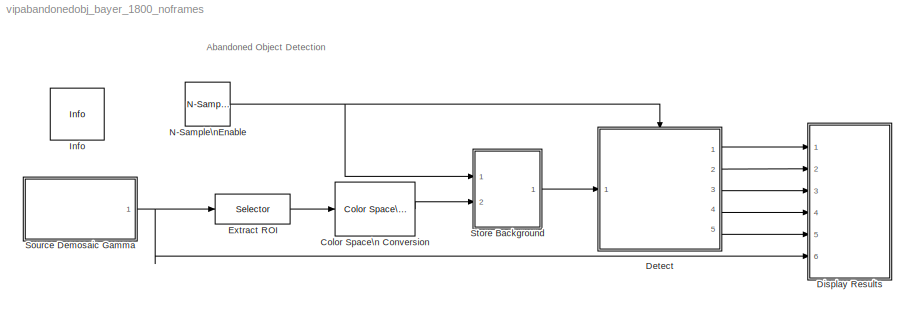
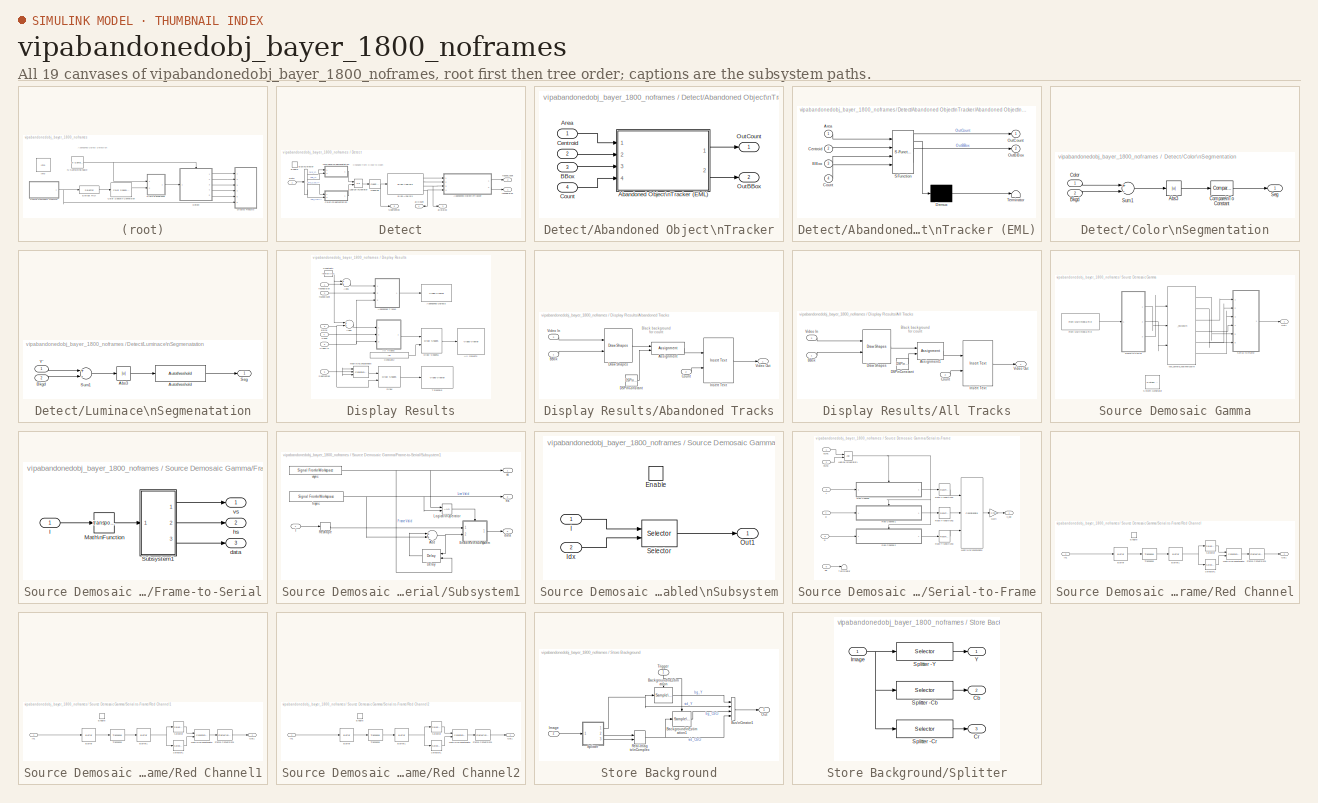
[diagram: thumbnail index - all 19 canvases of the model, root first then tree order]
MODEL vipabandonedobj_bayer_1800_noframes
KIND model
CONFIG InitFcn = init
CONFIG StartFcn = tic
CONFIG StopFcn = toc
WORKSPACE source: MATLAB code (in-file)
WORKSPACE roi = [80 100 240 360]
WORKSPACE maxNumObj = 200
BLOCK [Reference] Color Space\n Conversion  REF=vipconversions/Color Space\n Conversion
  Ports = [1, 1]
  SID = 1
  SourceBlock = vipconversions/Color Space\n Conversion
  SourceProductBaseCode = VP
  SourceProductName = Computer Vision Toolbox
  SourceType = Color Space Conversion
  conversion = Obsolete
  conversionActive = R'G'B' to Y'CbCr
  imagePorts = One multidimensional signal
  rec = Rec. 601 (SDTV)
  sys = 1125/60/2:1
  wp_str = D65
BLOCK [SubSystem] Detect
  Ports = [1, 5, 1]
  RTWMemSecDataConstants = Default
  RTWMemSecDataInternal = Default
  RTWMemSecDataParameters = Default
  RTWMemSecFuncExecute = Default
  RTWMemSecFuncInitTerm = Default
  RequestExecContextInheritance = off
  SID = 2
  TreatAsAtomicUnit = on
BLOCK [SubSystem] Detect/Abandoned Object\nTracker
  Ports = [4, 2]
  RequestExecContextInheritance = off
  SID = 5
BLOCK [SubSystem] Detect/Abandoned Object\nTracker/Abandoned Object\nTracker (EML)
  ErrorFcn = Stateflow.Translate.translate
  PermitHierarchicalResolution = ExplicitOnly
  Ports = [4, 2]
  RequestExecContextInheritance = off
  SFBlockType = MATLAB Function
  SID = 10
  TreatAsAtomicUnit = on
BLOCK [Demux] Detect/Abandoned Object\nTracker/Abandoned Object\nTracker (EML)/ Demux 
  Outputs = 1
  Ports = [1, 1]
  SID = 10::11
BLOCK [S-Function] Detect/Abandoned Object\nTracker/Abandoned Object\nTracker (EML)/ SFunction 
  EnableBusSupport = off
  FunctionName = sf_sfun
  Parameters = alarmCount,areaChangeFraction,centroidChangeFraction,maxConsecutiveMiss,minPersistenceRatio
  PortCounts = [4 3]
  Ports = [4, 3]
  SFcnIsStateOwnerBlock = off
  SFunctionDeploymentMode = off
  SID = 10::10
  Tag = Stateflow S-Function 2
BLOCK [Terminator] Detect/Abandoned Object\nTracker/Abandoned Object\nTracker (EML)/ Terminator 
  SID = 10::12
BLOCK [Inport] Detect/Abandoned Object\nTracker/Abandoned Object\nTracker (EML)/Area
  IconDisplay = Port number
  SID = 10::1
BLOCK [Inport] Detect/Abandoned Object\nTracker/Abandoned Object\nTracker (EML)/BBox
  IconDisplay = Port number
  Port = 3
  SID = 10::3
BLOCK [Inport] Detect/Abandoned Object\nTracker/Abandoned Object\nTracker (EML)/Centroid
  IconDisplay = Port number
  Port = 2
  SID = 10::2
BLOCK [Inport] Detect/Abandoned Object\nTracker/Abandoned Object\nTracker (EML)/Count
  IconDisplay = Port number
  Port = 4
  SID = 10::4
BLOCK [Outport] Detect/Abandoned Object\nTracker/Abandoned Object\nTracker (EML)/OutBBox
  IconDisplay = Port number
  Port = 2
  SID = 10::9
BLOCK [Outport] Detect/Abandoned Object\nTracker/Abandoned Object\nTracker (EML)/OutCount
  IconDisplay = Port number
  SID = 10::8
BLOCK [Inport] Detect/Abandoned Object\nTracker/Area
  IconDisplay = Port number
  SID = 6
BLOCK [Inport] Detect/Abandoned Object\nTracker/BBox
  IconDisplay = Port number
  Port = 3
  SID = 8
BLOCK [Inport] Detect/Abandoned Object\nTracker/Centroid
  IconDisplay = Port number
  Port = 2
  SID = 7
BLOCK [Inport] Detect/Abandoned Object\nTracker/Count
  IconDisplay = Port number
  Port = 4
  SID = 9
BLOCK [Outport] Detect/Abandoned Object\nTracker/OutBBox
  IconDisplay = Port number
  Port = 2
  SID = 12
BLOCK [Outport] Detect/Abandoned Object\nTracker/OutCount
  IconDisplay = Port number
  SID = 11
BLOCK [Reference] Detect/Blob Analysis  REF=vipstatistics/Blob Analysis
  LockScale = off
  Ports = [1, 4]
  SID = 13
  SourceBlock = vipstatistics/Blob Analysis
  SourceProductBaseCode = VP
  SourceProductName = Computer Vision Toolbox
  SourceType = Blob Analysis
  accumFracLength = 0
  accumMode = Binary point scaling
  accumWordLength = 32
  angle = off
  area = on
  bBox = on
  centroid = on
  conn = 8
  eccentricity = off
  equivDiameterSq = off
  excludeBorderBlob = on
  extent = off
  fillValues = -1
  firstCoeffFracLength = 14
  firstCoeffMode = Binary point scaling
  firstCoeffWordLength = 16
  isCount = on
  isFill = on
  isLabel = off
  majorAxis = off
  maxArea = 2500
  maxBlobs = maxNumObj
  memoryFracLength = 16
  memoryMode = Same as product output
  memoryWordLength = 32
  minArea = 100
  minorAxis = off
  outDT = double
  outputFracLength = 16
  outputMode = Binary point scaling
  outputWordLength = 32
  overflowMode = off
  perimeter = off
  prodOutputFracLength = 16
  prodOutputMode = Binary point scaling
  prodOutputWordLength = 32
  roundingMode = Floor
  secondCoeffFracLength = 16
  secondCoeffMode = Binary point scaling
  secondCoeffWordLength = 32
  useMaxArea = on
  useMinArea = on
  warnIfNumBlobsExceeded = on
BLOCK [BusSelector] Detect/Bus\nSelector
  OutputAsBus = off
  OutputSignals = vid_Y,bg_Y,vid_CbCr,bg_CbCr
  Ports = [1, 4]
  SID = 14
BLOCK [SubSystem] Detect/Color\nSegmentation
  Ports = [2, 1]
  RTWMemSecDataConstants = Default
  RTWMemSecDataInternal = Default
  RTWMemSecDataParameters = Default
  RTWMemSecFuncExecute = Default
  RTWMemSecFuncInitTerm = Default
  RequestExecContextInheritance = off
  SID = 15
BLOCK [Abs] Detect/Color\nSegmentation/Abs3
  SID = 18
BLOCK [Inport] Detect/Color\nSegmentation/Bkgd
  IconDisplay = Port number
  Port = 2
  SID = 17
BLOCK [Inport] Detect/Color\nSegmentation/Color
  IconDisplay = Port number
  SID = 16
BLOCK [Reference] Detect/Color\nSegmentation/Compare\nTo Constant  REF=simulink/Logic and Bit\nOperations/Compare\nTo Constant
  FunctionWithSeparateData = off
  LogicOutDataTypeMode = boolean
  Ports = [1, 1]
  RTWMemSecDataConstants = Inherit from model
  RTWMemSecDataInternal = Inherit from model
  RTWMemSecDataParameters = Inherit from model
  RTWMemSecFuncExecute = Inherit from model
  RTWMemSecFuncInitTerm = Inherit from model
  SID = 19
  ShowPortLabels = FromPortIcon
  SourceBlock = simulink/Logic and Bit\nOperations/Compare\nTo Constant
  SourceProductBaseCode = SL
  SourceProductName = Simulink
  SourceType = Compare To Constant
  SystemSampleTime = -1
  ZeroCross = off
  const = 0.05
  relop = >
BLOCK [Outport] Detect/Color\nSegmentation/Seg
  IconDisplay = Port number
  SID = 21
BLOCK [Sum] Detect/Color\nSegmentation/Sum1
  Inputs = +-
  Ports = [2, 1]
  SID = 20
BLOCK [Inport] Detect/Data
  IconDisplay = Port number
  SID = 3
BLOCK [EnablePort] Detect/Enable
  Ports = []
  SID = 4
BLOCK [Logic] Detect/Logical\nOperator
  AllPortsSameDT = off
  Operator = OR
  OutDataTypeStr = boolean
  Ports = [2, 1]
  SID = 22
BLOCK [SubSystem] Detect/Luminace\nSegmenatation
  Ports = [2, 1]
  RTWMemSecDataConstants = Default
  RTWMemSecDataInternal = Default
  RTWMemSecDataParameters = Default
  RTWMemSecFuncExecute = Default
  RTWMemSecFuncInitTerm = Default
  RequestExecContextInheritance = off
  SID = 23
BLOCK [Abs] Detect/Luminace\nSegmenatation/Abs3
  SID = 26
BLOCK [Reference] Detect/Luminace\nSegmenatation/Autothreshold  REF=vipconversions/Autothreshold
  A1FracLength = 30
  A1Mode = Same as Product 1
  A1WordLength = 32
  A2FracLength = 22
  A2Mode = Same as Product 2
  A2WordLength = 32
  A3FracLength = 14
  A3Mode = Same as Product 3
  A3WordLength = 32
  A4FracLength = 4
  A4Mode = Same as Product 4
  A4WordLength = 16
  EMFracLength = 14
  EMMode = Specify word length
  EMWordLength = 16
  LockScale = off
  P1FracLength = 30
  P1Mode = Specify word length
  P1WordLength = 32
  P2FracLength = 22
  P2Mode = Specify word length
  P2WordLength = 32
  P3FracLength = 14
  P3Mode = Specify word length
  P3WordLength = 32
  P4FracLength = 15
  P4Mode = Binary point scaling
  P4WordLength = 32
  Ports = [1, 1]
  Q1FracLength = 16
  Q1Mode = Specify word length
  Q1WordLength = 32
  SID = 27
  SourceBlock = vipconversions/Autothreshold
  SourceProductBaseCode = VP
  SourceProductName = Computer Vision Toolbox
  SourceType = Autothreshold
  effMetricOut = off
  operator = >
  outOfRngOpt = Warn and saturate
  overflowMode = off
  roundingMode = Floor
  scaleFactor = 1.3
  scaleThreshold = on
  threshOut = off
  umax = 100
  umin = 0
  userDefinedRange = off
BLOCK [Inport] Detect/Luminace\nSegmenatation/Bkgd
  IconDisplay = Port number
  Port = 2
  SID = 25
BLOCK [Outport] Detect/Luminace\nSegmenatation/Seg
  IconDisplay = Port number
  SID = 29
BLOCK [Sum] Detect/Luminace\nSegmenatation/Sum1
  Inputs = +-
  Ports = [2, 1]
  SID = 28
BLOCK [Inport] Detect/Luminace\nSegmenatation/Y'
  IconDisplay = Port number
  SID = 24
BLOCK [Reference] Detect/Opening  REF=vipmorphops/Opening
  Ports = [1, 1]
  SID = 30
  SourceBlock = vipmorphops/Opening
  SourceProductBaseCode = VP
  SourceProductName = Computer Vision Toolbox
  SourceType = Opening
  nhoodsrc = Specify via dialog
  strel = strel('square',3)
BLOCK [Outport] Detect/Segmented
  IconDisplay = Port number
  Port = 5
  SID = 35
BLOCK [Outport] Detect/allBBox
  IconDisplay = Port number
  Port = 3
  SID = 33
BLOCK [Outport] Detect/allCount
  IconDisplay = Port number
  Port = 4
  SID = 34
BLOCK [Outport] Detect/foundBBox
  IconDisplay = Port number
  SID = 31
BLOCK [Outport] Detect/foundCount
  IconDisplay = Port number
  Port = 2
  SID = 32
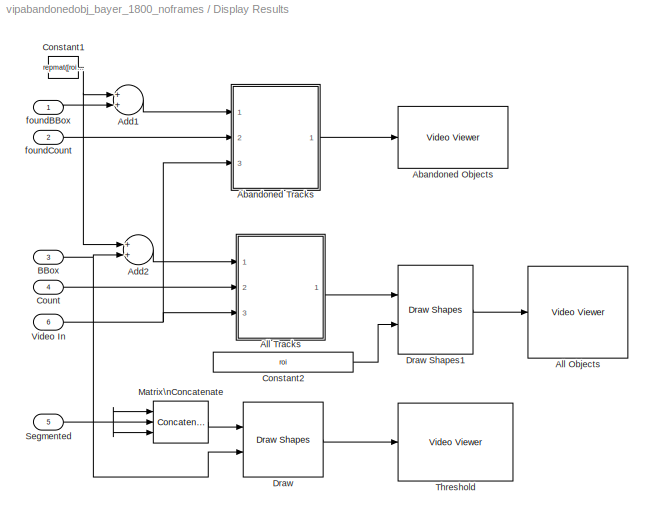
BLOCK [SubSystem] Display Results
  Ports = [6]
  RTWMemSecDataConstants = Default
  RTWMemSecDataInternal = Default
  RTWMemSecDataParameters = Default
  RTWMemSecFuncExecute = Default
  RTWMemSecFuncInitTerm = Default
  RequestExecContextInheritance = off
  SID = 37
BLOCK [Reference] Display Results/Abandoned Objects  REF=vipsnks/Video Viewer
  AxisZoom = on
  FigPos = [729 739 360 240]
  Ports = [1]
  SID = 44
  SourceBlock = vipsnks/Video Viewer
  SourceProductBaseCode = VP
  SourceProductName = Computer Vision Toolbox
  SourceType = Video Viewer
  colormapValue = jet(256);
  imagePorts = One multidimensional signal
  inputType = Obsolete
  maxInputVal = 255
  minInputVal = 0
  specRange = off
  trueSizedOnce = on
  useColorMap = off
BLOCK [SubSystem] Display Results/Abandoned Tracks
  Ports = [3, 1]
  RTWMemSecDataConstants = Default
  RTWMemSecDataInternal = Default
  RTWMemSecDataParameters = Default
  RTWMemSecFuncExecute = Default
  RTWMemSecFuncInitTerm = Default
  RequestExecContextInheritance = off
  SID = 45
BLOCK [Assignment] Display Results/Abandoned Tracks/Assignment
  IndexOptions = Index vector (dialog),Index vector (dialog),Assign all
  Indices = [1:15],[1:30],[]
  NumberOfDimensions = 3
  OutputSizes = 1, 1
  Ports = [2, 1]
  SID = 49
BLOCK [Inport] Display Results/Abandoned Tracks/BBox
  IconDisplay = Port number
  SID = 46
BLOCK [Inport] Display Results/Abandoned Tracks/Count
  IconDisplay = Port number
  Port = 2
  SID = 47
BLOCK [Reference] Display Results/Abandoned Tracks/DSP\nConstant  REF=dspsrcs4/DSP\nConstant
  FramebasedOutput = -inf
  FunctionWithSeparateData = off
  InterpretAs1D = -inf
  Ports = [0, 1]
  RTWMemSecDataConstants = Inherit from model
  RTWMemSecDataInternal = Inherit from model
  RTWMemSecDataParameters = Inherit from model
  RTWMemSecFuncExecute = Inherit from model
  RTWMemSecFuncInitTerm = Inherit from model
  SID = 50
  SampleMode = Discrete
  ShowPortLabels = FromPortIcon
  SourceBlock = dspsrcs4/DSP\nConstant
  SourceProductBaseCode = DS
  SourceProductName = DSP System Toolbox
  SourceType = DSP Constant
  SystemSampleTime = -1
  Ts = -inf
  Value = 0
  additionalParams = off
  allowOverrides = on
  continuousOutput = Sample-based
  dataType = Inherit via back propagation
  discreteOutput = Sample-based
  fracBitsMode = Best precision
  framePeriod = 2
  isSigned = on
  numFracBits = 15
  sampTime = inf
  udDataType = sfix(16)
  wordLen = 16
BLOCK [Reference] Display Results/Abandoned Tracks/Draw Shapes  REF=viptextngfix/Draw Shapes
  Ports = [2, 1]
  SID = 51
  SourceBlock = viptextngfix/Draw Shapes
  SourceProductBaseCode = VP
  SourceProductName = Computer Vision Toolbox
  SourceType = Draw Shapes
  antialiasing = off
  color = [1 0 0]
  display = User-specified value
  fill = on
  imagePorts = One multidimensional signal
  inType = Obsolete
  intensity = 200
  opacity = 0.5
  shape = Rectangles
  viewport = Entire image
BLOCK [Reference] Display Results/Abandoned Tracks/Insert Text  REF=viptextngfix/Insert Text
  Ports = [2, 1]
  SID = 52
  SourceBlock = viptextngfix/Insert Text
  SourceProductBaseCode = VP
  SourceProductName = Computer Vision Toolbox
  SourceType = Insert Text
  antiAliased = on
  blockFontSize = 12
  dummyVar1 = 0
  dummyVar2 = 0
  dummyVar3 = 0
  dummyVar4 = 0
  fontFace = LucidaTypewriterRegular
  getTextColorFrom = Specify via dialog
  getTextIntensityFrom = Specify via dialog
  getTextLocFrom = Specify via dialog
  getTextOpacityFrom = Specify via dialog
  imagePorts = One multidimensional signal
  inputType = Obsolete
  textColor = [1 1 1]
  textIntensity = 1
  textLoc = [0 0]
  textOpacity = 1.0
  theText = '%4d'
BLOCK [Inport] Display Results/Abandoned Tracks/Video In
  IconDisplay = Port number
  Port = 3
  SID = 48
BLOCK [Outport] Display Results/Abandoned Tracks/Video Out
  IconDisplay = Port number
  SID = 53
BLOCK [Sum] Display Results/Add1
  InputSameDT = off
  OutDataTypeStr = int32
  Ports = [2, 1]
  SID = 55
  SaturateOnIntegerOverflow = off
BLOCK [Sum] Display Results/Add2
  InputSameDT = off
  OutDataTypeStr = int32
  Ports = [2, 1]
  SID = 56
  SaturateOnIntegerOverflow = off
BLOCK [Reference] Display Results/All Objects  REF=vipsnks/Video Viewer
  AxisZoom = on
  FigPos = [361 738 360 240]
  Ports = [1]
  SID = 57
  SourceBlock = vipsnks/Video Viewer
  SourceProductBaseCode = VP
  SourceProductName = Computer Vision Toolbox
  SourceType = Video Viewer
  colormapValue = jet(256);
  imagePorts = One multidimensional signal
  inputType = Obsolete
  maxInputVal = 255
  minInputVal = 0
  specRange = off
  trueSizedOnce = on
  useColorMap = off
BLOCK [SubSystem] Display Results/All Tracks
  Ports = [3, 1]
  RTWMemSecDataConstants = Default
  RTWMemSecDataInternal = Default
  RTWMemSecDataParameters = Default
  RTWMemSecFuncExecute = Default
  RTWMemSecFuncInitTerm = Default
  RequestExecContextInheritance = off
  SID = 58
BLOCK [Assignment] Display Results/All Tracks/Assignment1
  IndexOptions = Index vector (dialog),Index vector (dialog),Assign all
  Indices = [1:15],[1:30],[]
  NumberOfDimensions = 3
  OutputSizes = 1, 1
  Ports = [2, 1]
  SID = 62
BLOCK [Inport] Display Results/All Tracks/BBox
  IconDisplay = Port number
  SID = 59
BLOCK [Inport] Display Results/All Tracks/Count
  IconDisplay = Port number
  Port = 2
  SID = 60
BLOCK [Reference] Display Results/All Tracks/DSP\nConstant  REF=dspsrcs4/DSP\nConstant
  FramebasedOutput = -inf
  FunctionWithSeparateData = off
  InterpretAs1D = -inf
  Ports = [0, 1]
  RTWMemSecDataConstants = Inherit from model
  RTWMemSecDataInternal = Inherit from model
  RTWMemSecDataParameters = Inherit from model
  RTWMemSecFuncExecute = Inherit from model
  RTWMemSecFuncInitTerm = Inherit from model
  SID = 63
  SampleMode = Discrete
  ShowPortLabels = FromPortIcon
  SourceBlock = dspsrcs4/DSP\nConstant
  SourceProductBaseCode = DS
  SourceProductName = DSP System Toolbox
  SourceType = DSP Constant
  SystemSampleTime = -1
  Ts = -inf
  Value = 0
  additionalParams = off
  allowOverrides = on
  continuousOutput = Sample-based
  dataType = Inherit via back propagation
  discreteOutput = Sample-based
  fracBitsMode = Best precision
  framePeriod = 2
  isSigned = on
  numFracBits = 15
  sampTime = inf
  udDataType = sfix(16)
  wordLen = 16
BLOCK [Reference] Display Results/All Tracks/Draw Shapes  REF=viptextngfix/Draw Shapes
  Ports = [2, 1]
  SID = 64
  SourceBlock = viptextngfix/Draw Shapes
  SourceProductBaseCode = VP
  SourceProductName = Computer Vision Toolbox
  SourceType = Draw Shapes
  antialiasing = off
  color = [0 1 0]
  display = User-specified value
  fill = off
  imagePorts = One multidimensional signal
  inType = Obsolete
  intensity = 200
  opacity = 0.6
  shape = Rectangles
  viewport = Entire image
BLOCK [Reference] Display Results/All Tracks/Insert Text  REF=viptextngfix/Insert Text
  Ports = [2, 1]
  SID = 65
  SourceBlock = viptextngfix/Insert Text
  SourceProductBaseCode = VP
  SourceProductName = Computer Vision Toolbox
  SourceType = Insert Text
  antiAliased = on
  blockFontSize = 12
  dummyVar1 = 0
  dummyVar2 = 0
  dummyVar3 = 0
  dummyVar4 = 0
  fontFace = LucidaTypewriterRegular
  getTextColorFrom = Specify via dialog
  getTextIntensityFrom = Specify via dialog
  getTextLocFrom = Specify via dialog
  getTextOpacityFrom = Specify via dialog
  imagePorts = One multidimensional signal
  inputType = Obsolete
  textColor = [1 1 1]
  textIntensity = 1
  textLoc = [0 0]
  textOpacity = 1.0
  theText = '%4d'
BLOCK [Inport] Display Results/All Tracks/Video In
  IconDisplay = Port number
  Port = 3
  SID = 61
BLOCK [Outport] Display Results/All Tracks/Video Out
  IconDisplay = Port number
  SID = 66
BLOCK [Inport] Display Results/BBox
  IconDisplay = Port number
  Port = 3
  SID = 40
BLOCK [Constant] Display Results/Constant1
  OutDataTypeStr = Inherit: Inherit via back propagation
  SID = 68
  Value = repmat([roi(1); roi(2); 0 ; 0],[1 maxNumObj])
  VectorParams1D = off
BLOCK [Constant] Display Results/Constant2
  SID = 69
  Value = roi
  VectorParams1D = off
BLOCK [Inport] Display Results/Count
  IconDisplay = Port number
  Port = 4
  SID = 41
BLOCK [Reference] Display Results/Draw  REF=viptextngfix/Draw Shapes
  Ports = [2, 1]
  SID = 70
  SourceBlock = viptextngfix/Draw Shapes
  SourceProductBaseCode = VP
  SourceProductName = Computer Vision Toolbox
  SourceType = Draw Shapes
  antialiasing = off
  color = [0 1 0]
  display = User-specified value
  fill = off
  imagePorts = One multidimensional signal
  inType = Obsolete
  intensity = 200
  opacity = 0.6
  shape = Rectangles
  viewport = Entire image
BLOCK [Reference] Display Results/Draw Shapes1  REF=viptextngfix/Draw Shapes
  Ports = [2, 1]
  SID = 71
  SourceBlock = viptextngfix/Draw Shapes
  SourceProductBaseCode = VP
  SourceProductName = Computer Vision Toolbox
  SourceType = Draw Shapes
  antialiasing = off
  color = [1 1 0]
  display = User-specified value
  fill = off
  imagePorts = One multidimensional signal
  inType = Obsolete
  intensity = 200
  opacity = 0.6
  shape = Rectangles
  viewport = Entire image
BLOCK [Concatenate] Display Results/Matrix\nConcatenate
  ConcatenateDimension = 3
  Mode = Multidimensional array
  NumInputs = 3
  Ports = [3, 1]
  SID = 72
BLOCK [Inport] Display Results/Segmented
  IconDisplay = Port number
  Port = 5
  SID = 42
BLOCK [Reference] Display Results/Threshold  REF=vipsnks/Video Viewer
  AxisZoom = on
  FigPos = [92 738 261 161]
  Ports = [1]
  SID = 73
  SourceBlock = vipsnks/Video Viewer
  SourceProductBaseCode = VP
  SourceProductName = Computer Vision Toolbox
  SourceType = Video Viewer
  colormapValue = jet(256);
  imagePorts = One multidimensional signal
  inputType = Obsolete
  maxInputVal = 255
  minInputVal = 0
  specRange = off
  trueSizedOnce = on
  useColorMap = off
BLOCK [Inport] Display Results/Video In
  IconDisplay = Port number
  Port = 6
  SID = 43
BLOCK [Inport] Display Results/foundBBox
  IconDisplay = Port number
  SID = 38
BLOCK [Inport] Display Results/foundCount
  IconDisplay = Port number
  Port = 2
  SID = 39
BLOCK [Selector] Extract ROI
  IndexOptions = Index vector (dialog),Index vector (dialog),Select all
  Indices = [roi(1):240],[roi(2):360],[]
  NumberOfDimensions = 3
  OutputSizes = 1
  Ports = [1, 1]
  SID = 74
BLOCK [Reference] Info  REF=vipmisc/Info
  FunctionWithSeparateData = off
  Ports = []
  RTWMemSecDataConstants = Inherit from model
  RTWMemSecDataInternal = Inherit from model
  RTWMemSecDataParameters = Inherit from model
  RTWMemSecFuncExecute = Inherit from model
  RTWMemSecFuncInitTerm = Inherit from model
  SID = 75
  ShowPortLabels = FromPortIcon
  SourceBlock = vipmisc/Info
  SourceProductBaseCode = VP
  SourceProductName = Computer Vision Toolbox
  SourceType = Info
  SystemSampleTime = -1
BLOCK [Reference] N-Sample\nEnable  REF=dspswit3/N-Sample\nEnable
  ActiveLevel = High (1)
  DataType = Logical
  N = 1
  Ports = [0, 1]
  SID = 76
  SourceBlock = dspswit3/N-Sample\nEnable
  SourceProductBaseCode = DS
  SourceProductName = DSP System Toolbox
  SourceType = N-Sample Enable
  TriggerType = Rising edge
  Ts = -1
  reset = off
BLOCK [SubSystem] Source Demosaic Gamma
  Ports = [0, 1]
  RequestExecContextInheritance = off
  SID = 77
BLOCK [Reference] Source Demosaic Gamma/ System Generator  REF=xbsIndex_r4/ System Generator
  AttributesFormatString = System\\nGenerator
  FunctionWithSeparateData = off
  Ports = []
  RTWMemSecDataConstants = Inherit from model
  RTWMemSecDataInternal = Inherit from model
  RTWMemSecDataParameters = Inherit from model
  RTWMemSecFuncExecute = Inherit from model
  RTWMemSecFuncInitTerm = Inherit from model
  SID = 78
  ShowPortLabels = FromPortIcon
  SourceBlock = xbsIndex_r4/ System Generator
  SourceType = Xilinx System Generator Block
  SystemSampleTime = -1
  Tag = genX
  UserData = DataTag0
  UserDataPersistent = on
  block_type = sysgen
  block_version = 9.2.01
  core_generation = According to Block Masks
  dbl_ovrd = According to Block Masks
  deprecated_control = off
  directory = ./netlist
  eval_field = 0
  has_advanced_control = 0
  incr_netlist = off
  infoedit = System Generator
  package = fg676
  part = xc3sd1800a
  run_coregen = off
  sg_icon_stat = 54,51,-1,-1,red,beige,0,07734
  sg_mask_display = fprintf('','COMMENT: begin icon graphics');\npatch([0 54 54 0 ],[0 0 51 51 ],[0.93 0.92 0.86]);\npatch([13 5 17 5 13 26 30 34 48 37 26 18 30 18 26 37 48 34 30 26 13 ],[6 14 26 38 46 46 42 46 46 35 46 38 26 14 6 17 6 6 10 6 6 ],[0.6 0.2 0.25]);\nplot([0 0 54 54 0 ],[0 51 51 0 0 ]);\nfprintf('','COMMENT: end icon graphics');\nfprintf('','COMMENT: begin icon text');\nfprintf('','COMMENT: end icon tex...<+6ch>
  sggui_pos = -1,-1,-1,-1
  simulink_period = (1/fps)/ (rows*(cols+2*blk))
  speed = -4
  synthesis_tool = XST
  sysclk_period = 20
  testbench = off
  trim_vbits = Everywhere in SubSystem
  xilinxfamily = spartan3adsp
BLOCK [SubSystem] Source Demosaic Gamma/Frame-to-Serial
  Ports = [1, 3]
  RequestExecContextInheritance = off
  SID = 79
BLOCK [Inport] Source Demosaic Gamma/Frame-to-Serial/I
  IconDisplay = Port number
  SID = 80
BLOCK [Math] Source Demosaic Gamma/Frame-to-Serial/Math\nFunction
  Operator = transpose
  Ports = [1, 1]
  SID = 81
BLOCK [SubSystem] Source Demosaic Gamma/Frame-to-Serial/Subsystem1
  Ports = [1, 3]
  RequestExecContextInheritance = off
  SID = 82
BLOCK [Sum] Source Demosaic Gamma/Frame-to-Serial/Subsystem1/Add
  InputSameDT = off
  OutDataTypeStr = Inherit: Inherit via internal rule
  Ports = [2, 1]
  SID = 84
  SaturateOnIntegerOverflow = off
BLOCK [Reference] Source Demosaic Gamma/Frame-to-Serial/Subsystem1/Delay  REF=dspsigops/Delay
  Ports = [2, 1]
  SID = 85
  SourceBlock = dspsigops/Delay
  SourceProductBaseCode = DS
  SourceProductName = DSP System Toolbox
  SourceType = Delay
  delay = 1
  dif_ic_for_ch = off
  dif_ic_for_dly = off
  dly_unit = Samples
  ic = 0
  ic_detail = off
  reset_popup = Falling edge
BLOCK [SubSystem] Source Demosaic Gamma/Frame-to-Serial/Subsystem1/Enabled\nSubsystem
  Ports = [2, 1, 1]
  RequestExecContextInheritance = off
  SID = 86
  TreatAsAtomicUnit = on
BLOCK [EnablePort] Source Demosaic Gamma/Frame-to-Serial/Subsystem1/Enabled\nSubsystem/Enable
  Ports = []
  SID = 89
BLOCK [Inport] Source Demosaic Gamma/Frame-to-Serial/Subsystem1/Enabled\nSubsystem/I
  IconDisplay = Port number
  SID = 87
BLOCK [Inport] Source Demosaic Gamma/Frame-to-Serial/Subsystem1/Enabled\nSubsystem/Idx
  IconDisplay = Port number
  Port = 2
  SID = 88
BLOCK [Outport] Source Demosaic Gamma/Frame-to-Serial/Subsystem1/Enabled\nSubsystem/Out1
  IconDisplay = Port number
  SID = 91
BLOCK [Selector] Source Demosaic Gamma/Frame-to-Serial/Subsystem1/Enabled\nSubsystem/Selector
  IndexOptions = Index vector (port)
  Indices = [1 4]
  InputPortWidth = rows*cols
  OutputSizes = 1
  Ports = [2, 1]
  SID = 90
  SampleTime = (1/fps)/(rows*(cols+2*blk))
BLOCK [Inport] Source Demosaic Gamma/Frame-to-Serial/Subsystem1/I
  IconDisplay = Port number
  SID = 83
BLOCK [Logic] Source Demosaic Gamma/Frame-to-Serial/Subsystem1/Logical\nOperator
  AllPortsSameDT = off
  OutDataTypeStr = boolean
  Ports = [2, 1]
  SID = 92
BLOCK [Reshape] Source Demosaic Gamma/Frame-to-Serial/Subsystem1/Reshape
  Ports = [1, 1]
  SID = 93
BLOCK [Outport] Source Demosaic Gamma/Frame-to-Serial/Subsystem1/data
  IconDisplay = Port number
  Port = 3
  SID = 98
BLOCK [Outport] Source Demosaic Gamma/Frame-to-Serial/Subsystem1/hs
  IconDisplay = Port number
  Port = 2
  SID = 97
BLOCK [Reference] Source Demosaic Gamma/Frame-to-Serial/Subsystem1/hsync  REF=dspsrcs4/Signal From\nWorkspace
  FunctionWithSeparateData = off
  OutputAfterFinalValue = Cyclic repetition
  Ports = [0, 1]
  RTWMemSecDataConstants = Inherit from model
  RTWMemSecDataInternal = Inherit from model
  RTWMemSecDataParameters = Inherit from model
  RTWMemSecFuncExecute = Inherit from model
  RTWMemSecFuncInitTerm = Inherit from model
  SID = 94
  ShowPortLabels = FromPortIcon
  SourceBlock = dspsrcs4/Signal From\nWorkspace
  SourceProductBaseCode = DS
  SourceProductName = DSP System Toolbox
  SourceType = Signal From Workspace
  SystemSampleTime = -1
  Ts = (1/fps)/ (rows*(cols+2*blk))
  X = [zeros(1,blk) ones(1,cols) zeros(1,blk)]
  ignoreOrWarnInputAndFrameLengths = off
  nsamps = 1
BLOCK [Outport] Source Demosaic Gamma/Frame-to-Serial/Subsystem1/vs
  IconDisplay = Port number
  SID = 96
BLOCK [Reference] Source Demosaic Gamma/Frame-to-Serial/Subsystem1/vsync  REF=dspsrcs4/Signal From\nWorkspace
  FunctionWithSeparateData = off
  OutputAfterFinalValue = Cyclic repetition
  Ports = [0, 1]
  RTWMemSecDataConstants = Inherit from model
  RTWMemSecDataInternal = Inherit from model
  RTWMemSecDataParameters = Inherit from model
  RTWMemSecFuncExecute = Inherit from model
  RTWMemSecFuncInitTerm = Inherit from model
  SID = 95
  ShowPortLabels = FromPortIcon
  SourceBlock = dspsrcs4/Signal From\nWorkspace
  SourceProductBaseCode = DS
  SourceProductName = DSP System Toolbox
  SourceType = Signal From Workspace
  SystemSampleTime = -1
  Ts = (1/fps)/(rows*(cols+2*blk))
  X = [ zeros(1,blk) ones(1,rows*(cols+2*blk)-2*blk) zeros(1,blk) ]
  ignoreOrWarnInputAndFrameLengths = off
  nsamps = 1
BLOCK [Outport] Source Demosaic Gamma/Frame-to-Serial/data
  IconDisplay = Port number
  Port = 3
  SID = 101
BLOCK [Outport] Source Demosaic Gamma/Frame-to-Serial/hs
  IconDisplay = Port number
  Port = 2
  SID = 100
BLOCK [Outport] Source Demosaic Gamma/Frame-to-Serial/vs
  IconDisplay = Port number
  SID = 99
BLOCK [Reference] Source Demosaic Gamma/From Multimedia File  REF=dspwin32/From Multimedia File
  Ports = [0, 1]
  SID = 102
  SourceBlock = dspwin32/From Multimedia File
  SourceProductBaseCode = DS
  SourceProductName = DSP System Toolbox
  SourceType = From Multimedia File
  audioDataType = int16
  colorVideoFormat = One multidimensional signal
  dataOrg = Column-major
  inheritSampleTime = off
  inputFilename = <path>
  isIntensityVideo = on
  loop = on
  noAudioOutput = off
  numPlays = inf
  outputEOF = off
  outputStreams = Video only
  userDefinedSampleTime = 1/fps
  videoDataType = uint8
BLOCK [Outport] Source Demosaic Gamma/Out1
  IconDisplay = Port number
  SID = 152
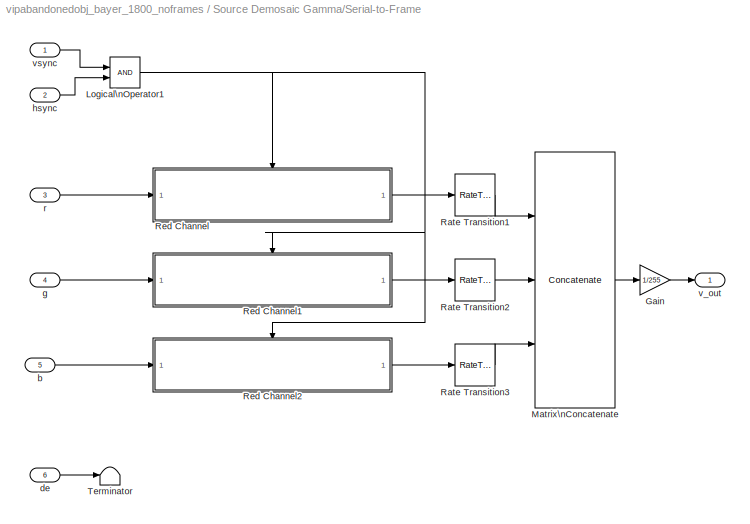
BLOCK [SubSystem] Source Demosaic Gamma/Serial-to-Frame
  Ports = [6, 1]
  RequestExecContextInheritance = off
  SID = 103
BLOCK [Gain] Source Demosaic Gamma/Serial-to-Frame/Gain
  Gain = 1/255
  OutDataTypeStr = Inherit: Inherit via internal rule
  ParamDataTypeStr = Inherit: Inherit via internal rule
  SID = 110
  SaturateOnIntegerOverflow = off
BLOCK [Logic] Source Demosaic Gamma/Serial-to-Frame/Logical\nOperator1
  AllPortsSameDT = off
  OutDataTypeStr = boolean
  Ports = [2, 1]
  SID = 111
BLOCK [Concatenate] Source Demosaic Gamma/Serial-to-Frame/Matrix\nConcatenate
  ConcatenateDimension = 3
  Mode = Multidimensional array
  NumInputs = 3
  Ports = [3, 1]
  SID = 112
BLOCK [RateTransition] Source Demosaic Gamma/Serial-to-Frame/Rate Transition1
  Deterministic = off
  OutPortSampleTime = 1/fps
  SID = 113
BLOCK [RateTransition] Source Demosaic Gamma/Serial-to-Frame/Rate Transition2
  Deterministic = off
  OutPortSampleTime = 1/fps
  SID = 114
BLOCK [RateTransition] Source Demosaic Gamma/Serial-to-Frame/Rate Transition3
  Deterministic = off
  OutPortSampleTime = 1/fps
  SID = 115
BLOCK [SubSystem] Source Demosaic Gamma/Serial-to-Frame/Red Channel
  Ports = [1, 1, 1]
  RequestExecContextInheritance = off
  SID = 116
BLOCK [Reference] Source Demosaic Gamma/Serial-to-Frame/Red Channel/Buffer  REF=dspbuff3/Buffer
  N = cols
  Ports = [1, 1]
  SID = 119
  SourceBlock = dspbuff3/Buffer
  SourceProductBaseCode = DS
  SourceProductName = DSP System Toolbox
  SourceType = Buffer
  V = 0
  ic = 0
BLOCK [Reference] Source Demosaic Gamma/Serial-to-Frame/Red Channel/Buffer1  REF=dspbuff3/Buffer
  N = rows
  Ports = [1, 1]
  SID = 120
  SourceBlock = dspbuff3/Buffer
  SourceProductBaseCode = DS
  SourceProductName = DSP System Toolbox
  SourceType = Buffer
  V = 0
  ic = 0
BLOCK [EnablePort] Source Demosaic Gamma/Serial-to-Frame/Red Channel/Enable
  Ports = []
  SID = 118
BLOCK [FrameConversion] Source Demosaic Gamma/Serial-to-Frame/Red Channel/Frame Conversion1
  OutFrame = Sample-based
  Ports = [1, 1]
  SID = 121
BLOCK [Inport] Source Demosaic Gamma/Serial-to-Frame/Red Channel/In1
  IconDisplay = Port number
  SID = 117
BLOCK [Concatenate] Source Demosaic Gamma/Serial-to-Frame/Red Channel/Matrix\nConcatenate
  Mode = Multidimensional array
  Ports = [2, 1]
  SID = 122
BLOCK [Outport] Source Demosaic Gamma/Serial-to-Frame/Red Channel/Out1
  IconDisplay = Port number
  SID = 126
BLOCK [Selector] Source Demosaic Gamma/Serial-to-Frame/Red Channel/Selector
  IndexOptions = Index vector (dialog),Select all
  Indices = 22:rows,1
  InputPortWidth = 3
  NumberOfDimensions = 2
  OutputSizes = 1,1
  Ports = [1, 1]
  SID = 123
BLOCK [Selector] Source Demosaic Gamma/Serial-to-Frame/Red Channel/Selector1
  IndexOptions = Index vector (dialog),Select all
  Indices = 1:21,1
  InputPortWidth = 3
  NumberOfDimensions = 2
  OutputSizes = 1,1
  Ports = [1, 1]
  SID = 124
BLOCK [Reference] Source Demosaic Gamma/Serial-to-Frame/Red Channel/Transpose  REF=dspmtrx3/Transpose
  FunctionWithSeparateData = off
  Hermitian = off
  Ports = [1, 1]
  RTWMemSecDataConstants = Inherit from model
  RTWMemSecDataInternal = Inherit from model
  RTWMemSecDataParameters = Inherit from model
  RTWMemSecFuncExecute = Inherit from model
  RTWMemSecFuncInitTerm = Inherit from model
  SID = 125
  ShowPortLabels = FromPortIcon
  SourceBlock = dspmtrx3/Transpose
  SourceProductBaseCode = DS
  SourceProductName = DSP System Toolbox
  SourceType = Transpose
  SystemSampleTime = -1
  overflowFlag = off
BLOCK [SubSystem] Source Demosaic Gamma/Serial-to-Frame/Red Channel1
  Ports = [1, 1, 1]
  RequestExecContextInheritance = off
  SID = 127
BLOCK [Reference] Source Demosaic Gamma/Serial-to-Frame/Red Channel1/Buffer  REF=dspbuff3/Buffer
  N = cols
  Ports = [1, 1]
  SID = 130
  SourceBlock = dspbuff3/Buffer
  SourceProductBaseCode = DS
  SourceProductName = DSP System Toolbox
  SourceType = Buffer
  V = 0
  ic = 0
BLOCK [Reference] Source Demosaic Gamma/Serial-to-Frame/Red Channel1/Buffer1  REF=dspbuff3/Buffer
  N = rows
  Ports = [1, 1]
  SID = 131
  SourceBlock = dspbuff3/Buffer
  SourceProductBaseCode = DS
  SourceProductName = DSP System Toolbox
  SourceType = Buffer
  V = 0
  ic = 0
BLOCK [EnablePort] Source Demosaic Gamma/Serial-to-Frame/Red Channel1/Enable
  Ports = []
  SID = 129
BLOCK [FrameConversion] Source Demosaic Gamma/Serial-to-Frame/Red Channel1/Frame Conversion1
  OutFrame = Sample-based
  Ports = [1, 1]
  SID = 132
BLOCK [Inport] Source Demosaic Gamma/Serial-to-Frame/Red Channel1/In1
  IconDisplay = Port number
  SID = 128
BLOCK [Concatenate] Source Demosaic Gamma/Serial-to-Frame/Red Channel1/Matrix\nConcatenate
  Mode = Multidimensional array
  Ports = [2, 1]
  SID = 133
BLOCK [Outport] Source Demosaic Gamma/Serial-to-Frame/Red Channel1/Out1
  IconDisplay = Port number
  SID = 137
BLOCK [Selector] Source Demosaic Gamma/Serial-to-Frame/Red Channel1/Selector
  IndexOptions = Index vector (dialog),Select all
  Indices = 22:rows,1
  InputPortWidth = 3
  NumberOfDimensions = 2
  OutputSizes = 1,1
  Ports = [1, 1]
  SID = 134
BLOCK [Selector] Source Demosaic Gamma/Serial-to-Frame/Red Channel1/Selector1
  IndexOptions = Index vector (dialog),Select all
  Indices = 1:21,1
  InputPortWidth = 3
  NumberOfDimensions = 2
  OutputSizes = 1,1
  Ports = [1, 1]
  SID = 135
BLOCK [Reference] Source Demosaic Gamma/Serial-to-Frame/Red Channel1/Transpose  REF=dspmtrx3/Transpose
  FunctionWithSeparateData = off
  Hermitian = off
  Ports = [1, 1]
  RTWMemSecDataConstants = Inherit from model
  RTWMemSecDataInternal = Inherit from model
  RTWMemSecDataParameters = Inherit from model
  RTWMemSecFuncExecute = Inherit from model
  RTWMemSecFuncInitTerm = Inherit from model
  SID = 136
  ShowPortLabels = FromPortIcon
  SourceBlock = dspmtrx3/Transpose
  SourceProductBaseCode = DS
  SourceProductName = DSP System Toolbox
  SourceType = Transpose
  SystemSampleTime = -1
  overflowFlag = off
BLOCK [SubSystem] Source Demosaic Gamma/Serial-to-Frame/Red Channel2
  Ports = [1, 1, 1]
  RequestExecContextInheritance = off
  SID = 138
BLOCK [Reference] Source Demosaic Gamma/Serial-to-Frame/Red Channel2/Buffer  REF=dspbuff3/Buffer
  N = cols
  Ports = [1, 1]
  SID = 141
  SourceBlock = dspbuff3/Buffer
  SourceProductBaseCode = DS
  SourceProductName = DSP System Toolbox
  SourceType = Buffer
  V = 0
  ic = 0
BLOCK [Reference] Source Demosaic Gamma/Serial-to-Frame/Red Channel2/Buffer1  REF=dspbuff3/Buffer
  N = rows
  Ports = [1, 1]
  SID = 142
  SourceBlock = dspbuff3/Buffer
  SourceProductBaseCode = DS
  SourceProductName = DSP System Toolbox
  SourceType = Buffer
  V = 0
  ic = 0
BLOCK [EnablePort] Source Demosaic Gamma/Serial-to-Frame/Red Channel2/Enable
  Ports = []
  SID = 140
BLOCK [FrameConversion] Source Demosaic Gamma/Serial-to-Frame/Red Channel2/Frame Conversion1
  OutFrame = Sample-based
  Ports = [1, 1]
  SID = 143
BLOCK [Inport] Source Demosaic Gamma/Serial-to-Frame/Red Channel2/In1
  IconDisplay = Port number
  SID = 139
BLOCK [Concatenate] Source Demosaic Gamma/Serial-to-Frame/Red Channel2/Matrix\nConcatenate
  Mode = Multidimensional array
  Ports = [2, 1]
  SID = 144
BLOCK [Outport] Source Demosaic Gamma/Serial-to-Frame/Red Channel2/Out1
  IconDisplay = Port number
  SID = 148
BLOCK [Selector] Source Demosaic Gamma/Serial-to-Frame/Red Channel2/Selector
  IndexOptions = Index vector (dialog),Select all
  Indices = 22:rows,1
  InputPortWidth = 3
  NumberOfDimensions = 2
  OutputSizes = 1,1
  Ports = [1, 1]
  SID = 145
BLOCK [Selector] Source Demosaic Gamma/Serial-to-Frame/Red Channel2/Selector1
  IndexOptions = Index vector (dialog),Select all
  Indices = 1:21,1
  InputPortWidth = 3
  NumberOfDimensions = 2
  OutputSizes = 1,1
  Ports = [1, 1]
  SID = 146
BLOCK [Reference] Source Demosaic Gamma/Serial-to-Frame/Red Channel2/Transpose  REF=dspmtrx3/Transpose
  FunctionWithSeparateData = off
  Hermitian = off
  Ports = [1, 1]
  RTWMemSecDataConstants = Inherit from model
  RTWMemSecDataInternal = Inherit from model
  RTWMemSecDataParameters = Inherit from model
  RTWMemSecFuncExecute = Inherit from model
  RTWMemSecFuncInitTerm = Inherit from model
  SID = 147
  ShowPortLabels = FromPortIcon
  SourceBlock = dspmtrx3/Transpose
  SourceProductBaseCode = DS
  SourceProductName = DSP System Toolbox
  SourceType = Transpose
  SystemSampleTime = -1
  overflowFlag = off
BLOCK [Terminator] Source Demosaic Gamma/Serial-to-Frame/Terminator
  SID = 149
BLOCK [Inport] Source Demosaic Gamma/Serial-to-Frame/b
  IconDisplay = Port number
  Port = 5
  SID = 108
BLOCK [Inport] Source Demosaic Gamma/Serial-to-Frame/de
  IconDisplay = Port number
  Port = 6
  SID = 109
BLOCK [Inport] Source Demosaic Gamma/Serial-to-Frame/g
  IconDisplay = Port number
  Port = 4
  SID = 107
BLOCK [Inport] Source Demosaic Gamma/Serial-to-Frame/hsync
  IconDisplay = Port number
  Port = 2
  SID = 105
BLOCK [Inport] Source Demosaic Gamma/Serial-to-Frame/r
  IconDisplay = Port number
  Port = 3
  SID = 106
BLOCK [Outport] Source Demosaic Gamma/Serial-to-Frame/v_out
  IconDisplay = Port number
  SID = 150
BLOCK [Inport] Source Demosaic Gamma/Serial-to-Frame/vsync
  IconDisplay = Port number
  SID = 104
BLOCK [Reference] Source Demosaic Gamma/vsk_camera_vop\nhwcosim  REF=S3ADSP_SK_PPEth_RuntimeCosim/_hwcosim
  Ports = [3, 6]
  SID = 151
  Scheme = Cosim
  SourceBlock = S3ADSP_SK_PPEth_RuntimeCosim/_hwcosim
  SourceType = Xilinx Point-to-point Ethernet Hardware Co-simulation Block
  bitfileName = <path>
  block_type = ppethernet_cosim
  block_version = 9.2.01
  bscanPos = 1
  cable = Xilinx Parallel Cable IV
  clkSrc = Free Running
  configTimeout = 3000
  cosim_xtable = {'ethernetCosim'=>{'bscanPos'=>1,'maxFrameSize'=>2040,'target'=>'S3ADSP_SK','type'=>'ppethernet'}}
  design_xtable = {\n  'clkWrapper' => 'vsk_camera_vop_cw',\n  'clocksGcd' => 1,\n  'device' => 'xc3sd1800a-4fg676',\n  'ports' => {\n    'blue_o' => {\n      'bd_port_index' => 0,\n      'direction' => 'out',\n      'icon_text' => 'blue_o',\n      'period' => 1,\n      'type' => 'UFix_8_0',\n      'width' => 8,\n    },\n    'data_i' => {\n      'bd_port_index' => 0,\n      'direction' => 'in',\n      'icon_text' =...<+1497ch>
  ethernetInterface = Please select an Ethernet interface
  ethernetInterfaceID = \\Device\\NPF_{A8C0F68A-51F8-4EB4-BBA0-E2E8303F83B4}
  fpgaEthernetAddr = 00:0a:35:11:22:33
  hasCombinationalPath = on
  hasProc = 0
  has_advanced_control = 0
  prgClkFreq = 50
  sg_icon_stat = 105,292,3,6,white,gray,0,ca661cb8
  sg_list_contents = {'table'=>{'ethernetInterface'=>'popup(Please select an Ethernet interface|Broadcom NetXtreme Gigabit Ethernet Driver (Microsoft\\'s Packet Scheduler)  (00:14:22:fb:42:88))','userSelections'=>{'ethernetInterface'=>'Please select an Ethernet interface'}}}
  sg_mask_display = fprintf('','COMMENT: begin icon graphics');\npatch([0 105 105 0 ],[0 0 292 292 ],[0.88 0.88 0.88]);\npatch([24 7 32 7 24 52 60 68 98 75 53 37 62 37 53 75 98 68 60 52 24 ],[105 122 147 172 189 189 181 189 189 166 188 172 147 122 106 128 105 105 113 105 105 ],[0.98 0.96 0.92]);\nplot([0 0 105 105 0 ],[0 292 292 0 0 ]);\nfprintf('','COMMENT: end icon graphics');\nfprintf('','COMMENT: begin icon text'...<+558ch>
  sggui_pos = 20,20,388,421
  speed = 5 MHz
  treeview = <html><head><meta name=\"qrichtext\" content=\"1\" /><style type=\"text/css\">\np, li { white-space: pre-wrap; }\n</style></head><body style=\" font-family:'MS Shell Dlg 2'; font-size:8.25pt; font-weight:400; font-style:normal;\">\n<p style=\"-qt-paragraph-type:empty; margin-top:0px; margin-bottom:0px; margin-left:0px; margin-right:0px; -qt-block-indent:0; text-indent:0px; font-size:8pt;\"></p></b...<+11ch>
  useWaitBox = 1
BLOCK [SubSystem] Store Background
  Ports = [2, 1]
  RequestExecContextInheritance = off
  SID = 153
BLOCK [Reference] Store Background/Background\nEstimation  REF=dspsigops/Sample\nand Hold
  FunctionWithSeparateData = off
  Ports = [1, 1, 0, 1]
  RTWMemSecDataConstants = Inherit from model
  RTWMemSecDataInternal = Inherit from model
  RTWMemSecDataParameters = Inherit from model
  RTWMemSecFuncExecute = Inherit from model
  RTWMemSecFuncInitTerm = Inherit from model
  SID = 156
  ShowPortLabels = FromPortIcon
  SourceBlock = dspsigops/Sample\nand Hold
  SourceProductBaseCode = DS
  SourceProductName = DSP System Toolbox
  SourceType = Sample and Hold
  SystemSampleTime = -1
  initCond = 0
  latchinput = off
  trig = Rising edge
BLOCK [Reference] Store Background/Background\nEstimation1  REF=dspsigops/Sample\nand Hold
  FunctionWithSeparateData = off
  Ports = [1, 1, 0, 1]
  RTWMemSecDataConstants = Inherit from model
  RTWMemSecDataInternal = Inherit from model
  RTWMemSecDataParameters = Inherit from model
  RTWMemSecFuncExecute = Inherit from model
  RTWMemSecFuncInitTerm = Inherit from model
  SID = 157
  ShowPortLabels = FromPortIcon
  SourceBlock = dspsigops/Sample\nand Hold
  SourceProductBaseCode = DS
  SourceProductName = DSP System Toolbox
  SourceType = Sample and Hold
  SystemSampleTime = -1
  initCond = 0
  latchinput = off
  trig = Rising edge
BLOCK [BusCreator] Store Background/Bus\nCreator1
  DisplayOption = bar
  InheritFromInputs = on
  Inputs = 4
  Ports = [4, 1]
  SID = 158
BLOCK [Inport] Store Background/Image
  IconDisplay = Port number
  Port = 2
  SID = 155
BLOCK [Outport] Store Background/Out
  IconDisplay = Port number
  SID = 168
BLOCK [RealImagToComplex] Store Background/Real-Imag to\nComplex
  Ports = [2, 1]
  SID = 159
BLOCK [SubSystem] Store Background/Splitter
  Ports = [1, 3]
  RequestExecContextInheritance = off
  SID = 160
BLOCK [Outport] Store Background/Splitter/Cb
  IconDisplay = Port number
  Port = 2
  SID = 166
BLOCK [Outport] Store Background/Splitter/Cr
  IconDisplay = Port number
  Port = 3
  SID = 167
BLOCK [Inport] Store Background/Splitter/Image
  IconDisplay = Port number
  SID = 161
BLOCK [Selector] Store Background/Splitter/Splitter -Cb
  IndexOptions = Select all,Select all,Index vector (dialog)
  Indices = [],[],[2]
  NumberOfDimensions = 3
  OutputSizes = 1
  Ports = [1, 1]
  SID = 162
BLOCK [Selector] Store Background/Splitter/Splitter -Cr
  IndexOptions = Select all,Select all,Index vector (dialog)
  Indices = [],[],[3]
  NumberOfDimensions = 3
  OutputSizes = 1
  Ports = [1, 1]
  SID = 163
BLOCK [Selector] Store Background/Splitter/Splitter -Y
  IndexOptions = Select all,Select all,Index vector (dialog)
  Indices = [],[],[1]
  NumberOfDimensions = 3
  OutputSizes = 1
  Ports = [1, 1]
  SID = 164
BLOCK [Outport] Store Background/Splitter/Y
  IconDisplay = Port number
  SID = 165
BLOCK [Inport] Store Background/Trigger
  IconDisplay = Port number
  SID = 154
ANNOTATION (root): Abandoned Object Detection
ANNOTATION Detect: Changed from Close to Open
ANNOTATION Display Results/Abandoned Tracks: Black background\nfor count
ANNOTATION Display Results/All Tracks: Black background\nfor count
LINE Color Space\n Conversion:1 -> Store Background:2
LINE Detect/Abandoned Object\nTracker/Abandoned Object\nTracker (EML)/ Demux :1 -> Detect/Abandoned Object\nTracker/Abandoned Object\nTracker (EML)/ Terminator :1
LINE Detect/Abandoned Object\nTracker/Abandoned Object\nTracker (EML)/ SFunction :1 -> Detect/Abandoned Object\nTracker/Abandoned Object\nTracker (EML)/ Demux :1
LINE Detect/Abandoned Object\nTracker/Abandoned Object\nTracker (EML)/ SFunction :2 -> Detect/Abandoned Object\nTracker/Abandoned Object\nTracker (EML)/OutCount:1
LINE Detect/Abandoned Object\nTracker/Abandoned Object\nTracker (EML)/ SFunction :3 -> Detect/Abandoned Object\nTracker/Abandoned Object\nTracker (EML)/OutBBox:1
LINE Detect/Abandoned Object\nTracker/Abandoned Object\nTracker (EML)/Area:1 -> Detect/Abandoned Object\nTracker/Abandoned Object\nTracker (EML)/ SFunction :1
LINE Detect/Abandoned Object\nTracker/Abandoned Object\nTracker (EML)/BBox:1 -> Detect/Abandoned Object\nTracker/Abandoned Object\nTracker (EML)/ SFunction :3
LINE Detect/Abandoned Object\nTracker/Abandoned Object\nTracker (EML)/Centroid:1 -> Detect/Abandoned Object\nTracker/Abandoned Object\nTracker (EML)/ SFunction :2
LINE Detect/Abandoned Object\nTracker/Abandoned Object\nTracker (EML)/Count:1 -> Detect/Abandoned Object\nTracker/Abandoned Object\nTracker (EML)/ SFunction :4
LINE Detect/Abandoned Object\nTracker/Abandoned Object\nTracker (EML):1 -> Detect/Abandoned Object\nTracker/OutCount:1
LINE Detect/Abandoned Object\nTracker/Abandoned Object\nTracker (EML):2 -> Detect/Abandoned Object\nTracker/OutBBox:1
LINE Detect/Abandoned Object\nTracker/Area:1 -> Detect/Abandoned Object\nTracker/Abandoned Object\nTracker (EML):1
LINE Detect/Abandoned Object\nTracker/BBox:1 -> Detect/Abandoned Object\nTracker/Abandoned Object\nTracker (EML):3
LINE Detect/Abandoned Object\nTracker/Centroid:1 -> Detect/Abandoned Object\nTracker/Abandoned Object\nTracker (EML):2
LINE Detect/Abandoned Object\nTracker/Count:1 -> Detect/Abandoned Object\nTracker/Abandoned Object\nTracker (EML):4
LINE Detect/Abandoned Object\nTracker:1 -> Detect/foundCount:1
LINE Detect/Abandoned Object\nTracker:2 -> Detect/foundBBox:1
LINE Detect/Blob Analysis:1 -> Detect/Abandoned Object\nTracker:1
LINE Detect/Blob Analysis:2 -> Detect/Abandoned Object\nTracker:2
NET Detect/Blob Analysis:3 -> Detect/Abandoned Object\nTracker:3, Detect/allBBox:1
NET Detect/Blob Analysis:4 -> Detect/Abandoned Object\nTracker:4, Detect/allCount:1
LINE Detect/Bus\nSelector:1 -> Detect/Luminace\nSegmenatation:1
LINE Detect/Bus\nSelector:2 -> Detect/Luminace\nSegmenatation:2
LINE Detect/Bus\nSelector:3 -> Detect/Color\nSegmentation:1
LINE Detect/Bus\nSelector:4 -> Detect/Color\nSegmentation:2
LINE Detect/Color\nSegmentation/Abs3:1 -> Detect/Color\nSegmentation/Compare\nTo Constant:1
LINE Detect/Color\nSegmentation/Bkgd:1 -> Detect/Color\nSegmentation/Sum1:2
LINE Detect/Color\nSegmentation/Color:1 -> Detect/Color\nSegmentation/Sum1:1
LINE Detect/Color\nSegmentation/Compare\nTo Constant:1 -> Detect/Color\nSegmentation/Seg:1
LINE Detect/Color\nSegmentation/Sum1:1 -> Detect/Color\nSegmentation/Abs3:1
LINE Detect/Color\nSegmentation:1 -> Detect/Logical\nOperator:2
LINE Detect/Data:1 -> Detect/Bus\nSelector:1
LINE Detect/Logical\nOperator:1 -> Detect/Opening:1
LINE Detect/Luminace\nSegmenatation/Abs3:1 -> Detect/Luminace\nSegmenatation/Autothreshold:1
LINE Detect/Luminace\nSegmenatation/Autothreshold:1 -> Detect/Luminace\nSegmenatation/Seg:1
LINE Detect/Luminace\nSegmenatation/Bkgd:1 -> Detect/Luminace\nSegmenatation/Sum1:2
LINE Detect/Luminace\nSegmenatation/Sum1:1 -> Detect/Luminace\nSegmenatation/Abs3:1
LINE Detect/Luminace\nSegmenatation/Y':1 -> Detect/Luminace\nSegmenatation/Sum1:1
LINE Detect/Luminace\nSegmenatation:1 -> Detect/Logical\nOperator:1
NET Detect/Opening:1 -> Detect/Blob Analysis:1, Detect/Segmented:1
LINE Detect:1 -> Display Results:1
LINE Detect:2 -> Display Results:2
LINE Detect:3 -> Display Results:3
LINE Detect:4 -> Display Results:4
LINE Detect:5 -> Display Results:5
LINE Display Results/Abandoned Tracks/Assignment:1 -> Display Results/Abandoned Tracks/Insert Text:1
LINE Display Results/Abandoned Tracks/BBox:1 -> Display Results/Abandoned Tracks/Draw Shapes:2
LINE Display Results/Abandoned Tracks/Count:1 -> Display Results/Abandoned Tracks/Insert Text:2
LINE Display Results/Abandoned Tracks/DSP\nConstant:1 -> Display Results/Abandoned Tracks/Assignment:2
LINE Display Results/Abandoned Tracks/Draw Shapes:1 -> Display Results/Abandoned Tracks/Assignment:1
LINE Display Results/Abandoned Tracks/Insert Text:1 -> Display Results/Abandoned Tracks/Video Out:1
LINE Display Results/Abandoned Tracks/Video In:1 -> Display Results/Abandoned Tracks/Draw Shapes:1
LINE Display Results/Abandoned Tracks:1 -> Display Results/Abandoned Objects:1
LINE Display Results/Add1:1 -> Display Results/Abandoned Tracks:1
LINE Display Results/Add2:1 -> Display Results/All Tracks:1
LINE Display Results/All Tracks/Assignment1:1 -> Display Results/All Tracks/Insert Text:1
LINE Display Results/All Tracks/BBox:1 -> Display Results/All Tracks/Draw Shapes:2
LINE Display Results/All Tracks/Count:1 -> Display Results/All Tracks/Insert Text:2
LINE Display Results/All Tracks/DSP\nConstant:1 -> Display Results/All Tracks/Assignment1:2
LINE Display Results/All Tracks/Draw Shapes:1 -> Display Results/All Tracks/Assignment1:1
LINE Display Results/All Tracks/Insert Text:1 -> Display Results/All Tracks/Video Out:1
LINE Display Results/All Tracks/Video In:1 -> Display Results/All Tracks/Draw Shapes:1
LINE Display Results/All Tracks:1 -> Display Results/Draw Shapes1:1
NET Display Results/BBox:1 -> Display Results/Add2:2, Display Results/Draw:2
NET Display Results/Constant1:1 -> Display Results/Add1:1, Display Results/Add2:1
LINE Display Results/Constant2:1 -> Display Results/Draw Shapes1:2
LINE Display Results/Count:1 -> Display Results/All Tracks:2
LINE Display Results/Draw Shapes1:1 -> Display Results/All Objects:1
LINE Display Results/Draw:1 -> Display Results/Threshold:1
LINE Display Results/Matrix\nConcatenate:1 -> Display Results/Draw:1
NET Display Results/Segmented:1 -> Display Results/Matrix\nConcatenate:1, Display Results/Matrix\nConcatenate:2, Display Results/Matrix\nConcatenate:3
NET Display Results/Video In:1 -> Display Results/Abandoned Tracks:3, Display Results/All Tracks:3
LINE Display Results/foundBBox:1 -> Display Results/Add1:2
LINE Display Results/foundCount:1 -> Display Results/Abandoned Tracks:2
LINE Extract ROI:1 -> Color Space\n Conversion:1
NET N-Sample\nEnable:1 -> Detect:enable, Store Background:1
LINE Source Demosaic Gamma/Frame-to-Serial/I:1 -> Source Demosaic Gamma/Frame-to-Serial/Math\nFunction:1
LINE Source Demosaic Gamma/Frame-to-Serial/Math\nFunction:1 -> Source Demosaic Gamma/Frame-to-Serial/Subsystem1:1
NET Source Demosaic Gamma/Frame-to-Serial/Subsystem1/Add:1 -> Source Demosaic Gamma/Frame-to-Serial/Subsystem1/Delay:1, Source Demosaic Gamma/Frame-to-Serial/Subsystem1/Enabled\nSubsystem:2
LINE Source Demosaic Gamma/Frame-to-Serial/Subsystem1/Delay:1 -> Source Demosaic Gamma/Frame-to-Serial/Subsystem1/Add:1
LINE Source Demosaic Gamma/Frame-to-Serial/Subsystem1/Enabled\nSubsystem/I:1 -> Source Demosaic Gamma/Frame-to-Serial/Subsystem1/Enabled\nSubsystem/Selector:1
LINE Source Demosaic Gamma/Frame-to-Serial/Subsystem1/Enabled\nSubsystem/Idx:1 -> Source Demosaic Gamma/Frame-to-Serial/Subsystem1/Enabled\nSubsystem/Selector:2
LINE Source Demosaic Gamma/Frame-to-Serial/Subsystem1/Enabled\nSubsystem/Selector:1 -> Source Demosaic Gamma/Frame-to-Serial/Subsystem1/Enabled\nSubsystem/Out1:1
LINE Source Demosaic Gamma/Frame-to-Serial/Subsystem1/Enabled\nSubsystem:1 -> Source Demosaic Gamma/Frame-to-Serial/Subsystem1/data:1
LINE Source Demosaic Gamma/Frame-to-Serial/Subsystem1/I:1 -> Source Demosaic Gamma/Frame-to-Serial/Subsystem1/Reshape:1
LINE Source Demosaic Gamma/Frame-to-Serial/Subsystem1/Logical\nOperator:1 -> Source Demosaic Gamma/Frame-to-Serial/Subsystem1/Enabled\nSubsystem:enable
LINE Source Demosaic Gamma/Frame-to-Serial/Subsystem1/Reshape:1 -> Source Demosaic Gamma/Frame-to-Serial/Subsystem1/Enabled\nSubsystem:1
NET Source Demosaic Gamma/Frame-to-Serial/Subsystem1/hsync:1 -> Source Demosaic Gamma/Frame-to-Serial/Subsystem1/Add:2, Source Demosaic Gamma/Frame-to-Serial/Subsystem1/Logical\nOperator:2, Source Demosaic Gamma/Frame-to-Serial/Subsystem1/hs:1
NET Source Demosaic Gamma/Frame-to-Serial/Subsystem1/vsync:1 -> Source Demosaic Gamma/Frame-to-Serial/Subsystem1/Delay:2, Source Demosaic Gamma/Frame-to-Serial/Subsystem1/Logical\nOperator:1, Source Demosaic Gamma/Frame-to-Serial/Subsystem1/vs:1
LINE Source Demosaic Gamma/Frame-to-Serial/Subsystem1:1 -> Source Demosaic Gamma/Frame-to-Serial/vs:1
LINE Source Demosaic Gamma/Frame-to-Serial/Subsystem1:2 -> Source Demosaic Gamma/Frame-to-Serial/hs:1
LINE Source Demosaic Gamma/Frame-to-Serial/Subsystem1:3 -> Source Demosaic Gamma/Frame-to-Serial/data:1
LINE Source Demosaic Gamma/Frame-to-Serial:1 -> Source Demosaic Gamma/vsk_camera_vop\nhwcosim:2
LINE Source Demosaic Gamma/Frame-to-Serial:2 -> Source Demosaic Gamma/vsk_camera_vop\nhwcosim:3
LINE Source Demosaic Gamma/Frame-to-Serial:3 -> Source Demosaic Gamma/vsk_camera_vop\nhwcosim:1
LINE Source Demosaic Gamma/From Multimedia File:1 -> Source Demosaic Gamma/Frame-to-Serial:1
LINE Source Demosaic Gamma/Serial-to-Frame/Gain:1 -> Source Demosaic Gamma/Serial-to-Frame/v_out:1
NET Source Demosaic Gamma/Serial-to-Frame/Logical\nOperator1:1 -> Source Demosaic Gamma/Serial-to-Frame/Red Channel1:enable, Source Demosaic Gamma/Serial-to-Frame/Red Channel2:enable, Source Demosaic Gamma/Serial-to-Frame/Red Channel:enable
LINE Source Demosaic Gamma/Serial-to-Frame/Matrix\nConcatenate:1 -> Source Demosaic Gamma/Serial-to-Frame/Gain:1
LINE Source Demosaic Gamma/Serial-to-Frame/Rate Transition1:1 -> Source Demosaic Gamma/Serial-to-Frame/Matrix\nConcatenate:1
LINE Source Demosaic Gamma/Serial-to-Frame/Rate Transition2:1 -> Source Demosaic Gamma/Serial-to-Frame/Matrix\nConcatenate:2
LINE Source Demosaic Gamma/Serial-to-Frame/Rate Transition3:1 -> Source Demosaic Gamma/Serial-to-Frame/Matrix\nConcatenate:3
NET Source Demosaic Gamma/Serial-to-Frame/Red Channel/Buffer1:1 -> Source Demosaic Gamma/Serial-to-Frame/Red Channel/Selector1:1, Source Demosaic Gamma/Serial-to-Frame/Red Channel/Selector:1
LINE Source Demosaic Gamma/Serial-to-Frame/Red Channel/Buffer:1 -> Source Demosaic Gamma/Serial-to-Frame/Red Channel/Transpose:1
LINE Source Demosaic Gamma/Serial-to-Frame/Red Channel/Frame Conversion1:1 -> Source Demosaic Gamma/Serial-to-Frame/Red Channel/Out1:1
LINE Source Demosaic Gamma/Serial-to-Frame/Red Channel/In1:1 -> Source Demosaic Gamma/Serial-to-Frame/Red Channel/Buffer:1
LINE Source Demosaic Gamma/Serial-to-Frame/Red Channel/Matrix\nConcatenate:1 -> Source Demosaic Gamma/Serial-to-Frame/Red Channel/Frame Conversion1:1
LINE Source Demosaic Gamma/Serial-to-Frame/Red Channel/Selector1:1 -> Source Demosaic Gamma/Serial-to-Frame/Red Channel/Matrix\nConcatenate:2
LINE Source Demosaic Gamma/Serial-to-Frame/Red Channel/Selector:1 -> Source Demosaic Gamma/Serial-to-Frame/Red Channel/Matrix\nConcatenate:1
LINE Source Demosaic Gamma/Serial-to-Frame/Red Channel/Transpose:1 -> Source Demosaic Gamma/Serial-to-Frame/Red Channel/Buffer1:1
NET Source Demosaic Gamma/Serial-to-Frame/Red Channel1/Buffer1:1 -> Source Demosaic Gamma/Serial-to-Frame/Red Channel1/Selector1:1, Source Demosaic Gamma/Serial-to-Frame/Red Channel1/Selector:1
LINE Source Demosaic Gamma/Serial-to-Frame/Red Channel1/Buffer:1 -> Source Demosaic Gamma/Serial-to-Frame/Red Channel1/Transpose:1
LINE Source Demosaic Gamma/Serial-to-Frame/Red Channel1/Frame Conversion1:1 -> Source Demosaic Gamma/Serial-to-Frame/Red Channel1/Out1:1
LINE Source Demosaic Gamma/Serial-to-Frame/Red Channel1/In1:1 -> Source Demosaic Gamma/Serial-to-Frame/Red Channel1/Buffer:1
LINE Source Demosaic Gamma/Serial-to-Frame/Red Channel1/Matrix\nConcatenate:1 -> Source Demosaic Gamma/Serial-to-Frame/Red Channel1/Frame Conversion1:1
LINE Source Demosaic Gamma/Serial-to-Frame/Red Channel1/Selector1:1 -> Source Demosaic Gamma/Serial-to-Frame/Red Channel1/Matrix\nConcatenate:2
LINE Source Demosaic Gamma/Serial-to-Frame/Red Channel1/Selector:1 -> Source Demosaic Gamma/Serial-to-Frame/Red Channel1/Matrix\nConcatenate:1
LINE Source Demosaic Gamma/Serial-to-Frame/Red Channel1/Transpose:1 -> Source Demosaic Gamma/Serial-to-Frame/Red Channel1/Buffer1:1
LINE Source Demosaic Gamma/Serial-to-Frame/Red Channel1:1 -> Source Demosaic Gamma/Serial-to-Frame/Rate Transition2:1
NET Source Demosaic Gamma/Serial-to-Frame/Red Channel2/Buffer1:1 -> Source Demosaic Gamma/Serial-to-Frame/Red Channel2/Selector1:1, Source Demosaic Gamma/Serial-to-Frame/Red Channel2/Selector:1
LINE Source Demosaic Gamma/Serial-to-Frame/Red Channel2/Buffer:1 -> Source Demosaic Gamma/Serial-to-Frame/Red Channel2/Transpose:1
LINE Source Demosaic Gamma/Serial-to-Frame/Red Channel2/Frame Conversion1:1 -> Source Demosaic Gamma/Serial-to-Frame/Red Channel2/Out1:1
LINE Source Demosaic Gamma/Serial-to-Frame/Red Channel2/In1:1 -> Source Demosaic Gamma/Serial-to-Frame/Red Channel2/Buffer:1
LINE Source Demosaic Gamma/Serial-to-Frame/Red Channel2/Matrix\nConcatenate:1 -> Source Demosaic Gamma/Serial-to-Frame/Red Channel2/Frame Conversion1:1
LINE Source Demosaic Gamma/Serial-to-Frame/Red Channel2/Selector1:1 -> Source Demosaic Gamma/Serial-to-Frame/Red Channel2/Matrix\nConcatenate:2
LINE Source Demosaic Gamma/Serial-to-Frame/Red Channel2/Selector:1 -> Source Demosaic Gamma/Serial-to-Frame/Red Channel2/Matrix\nConcatenate:1
LINE Source Demosaic Gamma/Serial-to-Frame/Red Channel2/Transpose:1 -> Source Demosaic Gamma/Serial-to-Frame/Red Channel2/Buffer1:1
LINE Source Demosaic Gamma/Serial-to-Frame/Red Channel2:1 -> Source Demosaic Gamma/Serial-to-Frame/Rate Transition3:1
LINE Source Demosaic Gamma/Serial-to-Frame/Red Channel:1 -> Source Demosaic Gamma/Serial-to-Frame/Rate Transition1:1
LINE Source Demosaic Gamma/Serial-to-Frame/b:1 -> Source Demosaic Gamma/Serial-to-Frame/Red Channel2:1
LINE Source Demosaic Gamma/Serial-to-Frame/de:1 -> Source Demosaic Gamma/Serial-to-Frame/Terminator:1
LINE Source Demosaic Gamma/Serial-to-Frame/g:1 -> Source Demosaic Gamma/Serial-to-Frame/Red Channel1:1
LINE Source Demosaic Gamma/Serial-to-Frame/hsync:1 -> Source Demosaic Gamma/Serial-to-Frame/Logical\nOperator1:2
LINE Source Demosaic Gamma/Serial-to-Frame/r:1 -> Source Demosaic Gamma/Serial-to-Frame/Red Channel:1
LINE Source Demosaic Gamma/Serial-to-Frame/vsync:1 -> Source Demosaic Gamma/Serial-to-Frame/Logical\nOperator1:1
LINE Source Demosaic Gamma/Serial-to-Frame:1 -> Source Demosaic Gamma/Out1:1
LINE Source Demosaic Gamma/vsk_camera_vop\nhwcosim:1 -> Source Demosaic Gamma/Serial-to-Frame:5
LINE Source Demosaic Gamma/vsk_camera_vop\nhwcosim:2 -> Source Demosaic Gamma/Serial-to-Frame:6
LINE Source Demosaic Gamma/vsk_camera_vop\nhwcosim:3 -> Source Demosaic Gamma/Serial-to-Frame:1
LINE Source Demosaic Gamma/vsk_camera_vop\nhwcosim:4 -> Source Demosaic Gamma/Serial-to-Frame:4
LINE Source Demosaic Gamma/vsk_camera_vop\nhwcosim:5 -> Source Demosaic Gamma/Serial-to-Frame:2
LINE Source Demosaic Gamma/vsk_camera_vop\nhwcosim:6 -> Source Demosaic Gamma/Serial-to-Frame:3
NET Source Demosaic Gamma:1 -> Display Results:6, Extract ROI:1
LINE Store Background/Background\nEstimation1:1 -> Store Background/Bus\nCreator1:3
LINE Store Background/Background\nEstimation:1 -> Store Background/Bus\nCreator1:1
LINE Store Background/Bus\nCreator1:1 -> Store Background/Out:1
LINE Store Background/Image:1 -> Store Background/Splitter:1
NET Store Background/Real-Imag to\nComplex:1 -> Store Background/Background\nEstimation1:1, Store Background/Bus\nCreator1:4
NET Store Background/Splitter/Image:1 -> Store Background/Splitter/Splitter -Cb:1, Store Background/Splitter/Splitter -Cr:1, Store Background/Splitter/Splitter -Y:1
LINE Store Background/Splitter/Splitter -Cb:1 -> Store Background/Splitter/Cb:1
LINE Store Background/Splitter/Splitter -Cr:1 -> Store Background/Splitter/Cr:1
LINE Store Background/Splitter/Splitter -Y:1 -> Store Background/Splitter/Y:1
NET Store Background/Splitter:1 -> Store Background/Background\nEstimation:1, Store Background/Bus\nCreator1:2
LINE Store Background/Splitter:2 -> Store Background/Real-Imag to\nComplex:1
LINE Store Background/Splitter:3 -> Store Background/Real-Imag to\nComplex:2
NET Store Background/Trigger:1 -> Store Background/Background\nEstimation1:trigger, Store Background/Background\nEstimation:trigger
LINE Store Background:1 -> Detect:1
note: NET lines group one-source signal fan-out (src -> all destinations, sorted); 1:1 wires keep LINE
CHART Detect/Abandoned Object\nTracker/Abandoned Object\nTracker (EML) states=1 transitions=1
  STATE_LABEL 'eML_blk_kernel()'
note: 2 file-system paths scrubbed to <path> (not preserved elsewhere — flat text is the only slx artifact)
